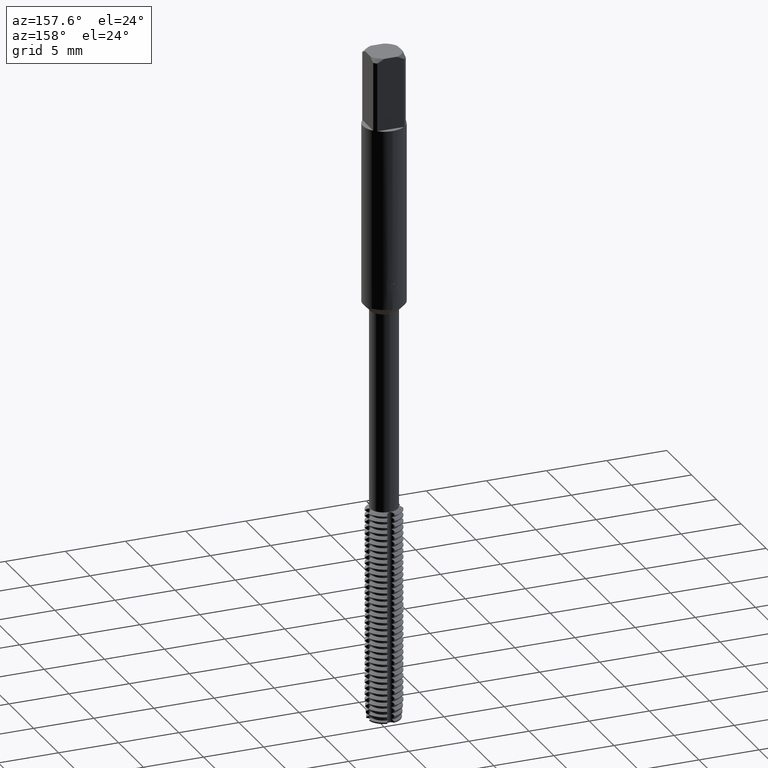
[diagram: clean part render]
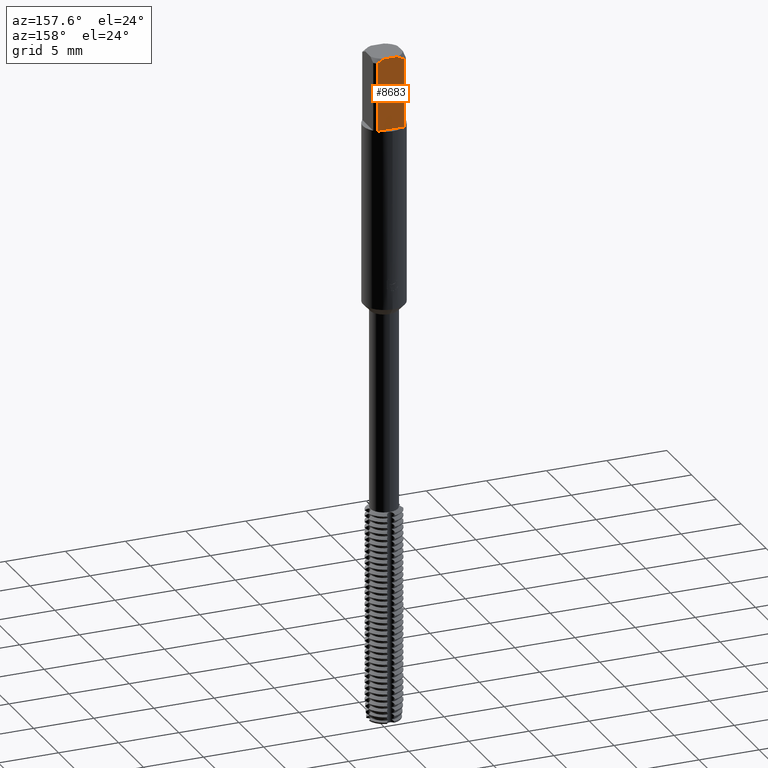
[diagram: same view with one face highlighted and labeled with its STEP entity id]
A machine part, auxiliary view. The second image highlights one B-rep face of the part: STEP entity #8683.
In plain terms, the highlighted planar face has unit normal (0, 1, 0).
Its self-contained STEP definition (entity closure, byte-faithful):
#5495=VERTEX_POINT('',#16340);
#6469=EDGE_CURVE('',#13377,#8849,#17394,.T.);
#8683=ADVANCED_FACE('',(#19804),#19805,.T.);
#8849=VERTEX_POINT('',#19982);
#9397=EDGE_CURVE('',#8849,#9871,#20578,.T.);
#9871=VERTEX_POINT('',#21087);
#10253=EDGE_CURVE('',#5495,#13377,#21497,.T.);
#12869=VERTEX_POINT('',#24339);
#12891=EDGE_CURVE('',#12869,#5495,#24364,.T.);
#13377=VERTEX_POINT('',#24886);
#13791=EDGE_CURVE('',#14557,#12869,#25338,.T.);
#14557=VERTEX_POINT('',#26174);
#15937=EDGE_CURVE('',#9871,#14557,#27665,.T.);
#16340=CARTESIAN_POINT('',(-0.529150262212918,1.35,0.0));
#17394=LINE('',#30191,#30192);
#19804=FACE_OUTER_BOUND('',#34839,.T.);
#19805=PLANE('',#34840);
#19982=CARTESIAN_POINT('',(-1.113552872566,1.35,-6.0));
#20578=LINE('',#36255,#36256);
#21087=CARTESIAN_POINT('',(1.113552872566,1.35,-6.0));
#21497=(B_SPLINE_CURVE(2,(#37988,#37989,#37990),.UNSPECIFIED.,.F.,.F.)B_SPLINE_CURVE_WITH_KNOTS((3,3),(0.0,0.657857615083891),.UNSPECIFIED.)RATIONAL_B_SPLINE_CURVE((1.0,1.01710517501156,1.0))BOUNDED_CURVE()REPRESENTATION_ITEM('')GEOMETRIC_REPRESENTATION_ITEM()CURVE());
#24339=CARTESIAN_POINT('',(0.529150262212918,1.35,0.0));
#24364=LINE('',#43200,#43201);
#24886=CARTESIAN_POINT('',(-1.113552872566,1.35,-0.300000000000001));
#25338=(B_SPLINE_CURVE(2,(#45036,#45037,#45038),.UNSPECIFIED.,.F.,.F.)B_SPLINE_CURVE_WITH_KNOTS((3,3),(0.0,0.657857615083891),.UNSPECIFIED.)RATIONAL_B_SPLINE_CURVE((1.0,1.01710517501156,1.0))BOUNDED_CURVE()REPRESENTATION_ITEM('')GEOMETRIC_REPRESENTATION_ITEM()CURVE());
#26174=CARTESIAN_POINT('',(1.113552872566,1.35,-0.300000000000001));
#27665=LINE('',#49347,#49348);
#30191=CARTESIAN_POINT('',(-1.113552872566,1.35,-3.15));
#30192=VECTOR('',#51519,1.0);
#34839=EDGE_LOOP('',(#53909,#53910,#53911,#53912,#53913,#53914));
#34840=AXIS2_PLACEMENT_3D('',#53915,#53916,#53917);
#36255=CARTESIAN_POINT('',(0.0,1.35,-6.0));
#36256=VECTOR('',#54673,1.0);
#37988=CARTESIAN_POINT('',(-0.529150262212924,1.35,-2.77555756156289E-017));
#37989=CARTESIAN_POINT('',(-0.793957695029165,1.35,-0.0966364982832037));
#37990=CARTESIAN_POINT('',(-1.11355287256601,1.35,-0.300000000000001));
#43200=CARTESIAN_POINT('',(0.0,1.35,0.0));
#43201=VECTOR('',#58551,1.0);
#45036=CARTESIAN_POINT('',(1.11355287256601,1.35,-0.300000000000001));
#45037=CARTESIAN_POINT('',(0.793957695029165,1.35,-0.0966364982832037));
#45038=CARTESIAN_POINT('',(0.529150262212924,1.35,-2.77555756156289E-017));
#49347=CARTESIAN_POINT('',(1.113552872566,1.35,-3.15));
#49348=VECTOR('',#62002,1.0);
#51519=DIRECTION('',(0.0,0.0,-1.0));
#53909=ORIENTED_EDGE('',*,*,#6469,.F.);
#53910=ORIENTED_EDGE('',*,*,#10253,.F.);
#53911=ORIENTED_EDGE('',*,*,#12891,.F.);
#53912=ORIENTED_EDGE('',*,*,#13791,.F.);
#53913=ORIENTED_EDGE('',*,*,#15937,.F.);
#53914=ORIENTED_EDGE('',*,*,#9397,.F.);
#53915=CARTESIAN_POINT('',(0.0,1.35,-2.5));
#53916=DIRECTION('',(0.0,1.0,0.0));
#53917=DIRECTION('',(0.0,0.0,-1.0));
#54673=DIRECTION('',(1.0,0.0,0.0));
#58551=DIRECTION('',(-1.0,0.0,0.0));
#62002=DIRECTION('',(-0.0,-0.0,1.0));